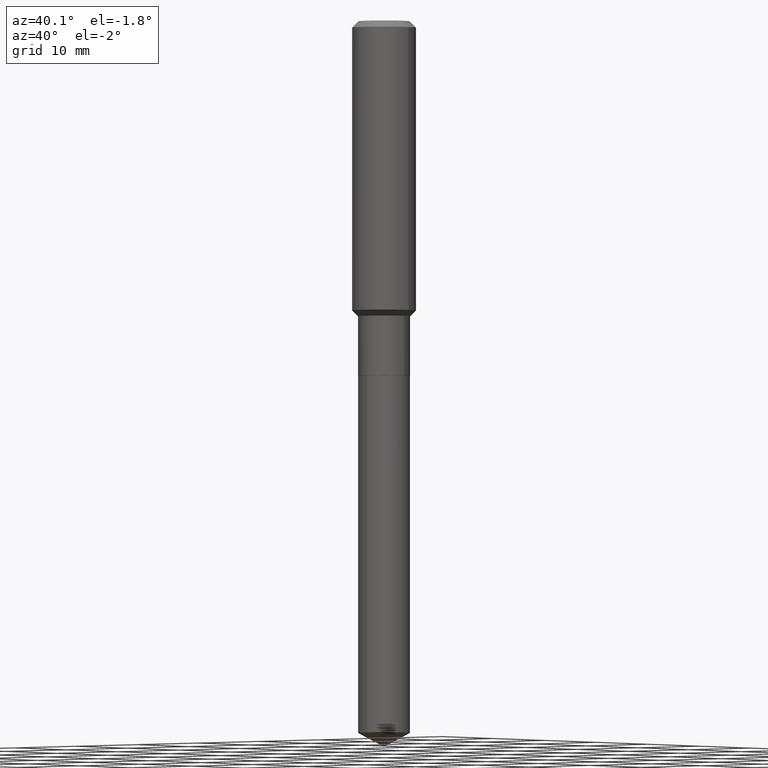
[diagram: clean part render]
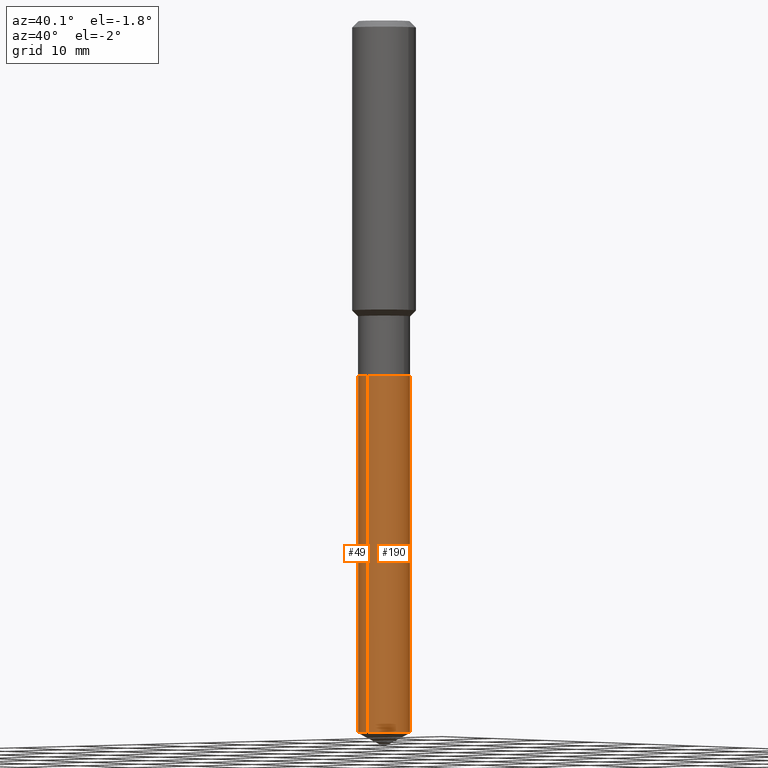
[diagram: same view with one multi-face feature highlighted, each face labeled with its STEP entity id]
A machine part, auxiliary view. The highlighted faces form ONE feature: a constant-radius fillet chain: 2 tangent blend faces with common blend radius 3.2639 mm. The faces share edges in the B-rep.
Their STEP definitions:
[1] entity #49 (Cylinder):
#2 = CARTESIAN_POINT ( 'NONE',  ( 9.130474154518147468E-16, 0.1284999999999877629, -3.514675338031501450 ) ) ;
#28 = CARTESIAN_POINT ( 'NONE',  ( 9.130474154517715566E-16, 0.1284999999999938969, -1.753000000000000336 ) ) ;
#32 = EDGE_CURVE ( 'NONE', #298, #135, #121, .T. ) ;
#41 = AXIS2_PLACEMENT_3D ( 'NONE', #112, #268, #276 ) ;
#49 = ADVANCED_FACE ( 'NONE', ( #96 ), #405, .T. ) ;
#72 = LINE ( 'NONE', #423, #163 ) ;
#76 = AXIS2_PLACEMENT_3D ( 'NONE', #168, #208, #322 ) ;
#91 = EDGE_CURVE ( 'NONE', #407, #135, #72, .T. ) ;
#94 = VERTEX_POINT ( 'NONE', #2 ) ;
#96 = FACE_OUTER_BOUND ( 'NONE', #142, .T. ) ;
#101 = ORIENTED_EDGE ( 'NONE', *, *, #91, .T. ) ;
#112 = CARTESIAN_POINT ( 'NONE',  ( 8.595028662167520806E-29, -1.227142369974973413E-14, -3.514675338031501006 ) ) ;
#121 = CIRCLE ( 'NONE', #76, 0.1285000000000000031 ) ;
#135 = VERTEX_POINT ( 'NONE', #155 ) ;
#142 = EDGE_LOOP ( 'NONE', ( #401, #304, #101, #210 ) ) ;
#155 = CARTESIAN_POINT ( 'NONE',  ( -8.973107040826423819E-16, -0.1285000000000061093, -1.752999999999999226 ) ) ;
#163 = VECTOR ( 'NONE', #185, 39.37007874015748143 ) ;
#168 = CARTESIAN_POINT ( 'NONE',  ( 4.286906817242544172E-29, -6.120566786992033692E-15, -1.752999999999999892 ) ) ;
#185 = DIRECTION ( 'NONE',  ( -2.445468669464873816E-29, 3.491481534634343059E-15, 1.000000000000000000 ) ) ;
#208 = DIRECTION ( 'NONE',  ( -2.445468669464873816E-29, 3.491481534634343453E-15, 1.000000000000000000 ) ) ;
#210 = ORIENTED_EDGE ( 'NONE', *, *, #32, .F. ) ;
#245 = DIRECTION ( 'NONE',  ( -2.445468669464873816E-29, 3.491481534634343059E-15, 1.000000000000000000 ) ) ;
#246 = DIRECTION ( 'NONE',  ( -2.445468669464873816E-29, 3.491481534634343453E-15, 1.000000000000000000 ) ) ;
#255 = EDGE_CURVE ( 'NONE', #94, #407, #278, .T. ) ;
#268 = DIRECTION ( 'NONE',  ( -2.445468669464873816E-29, 3.491481534634343453E-15, 1.000000000000000000 ) ) ;
#272 = AXIS2_PLACEMENT_3D ( 'NONE', #438, #246, #396 ) ;
#276 = DIRECTION ( 'NONE',  ( -6.982962677686265922E-15, -1.000000000000000000, 4.251903492084456561E-15 ) ) ;
#278 = CIRCLE ( 'NONE', #41, 0.1285000000000000031 ) ;
#285 = CARTESIAN_POINT ( 'NONE',  ( 9.130474154518149440E-16, 0.1284999999999938969, -1.753000000000000336 ) ) ;
#298 = VERTEX_POINT ( 'NONE', #285 ) ;
#304 = ORIENTED_EDGE ( 'NONE', *, *, #255, .T. ) ;
#312 = EDGE_CURVE ( 'NONE', #94, #298, #412, .T. ) ;
#322 = DIRECTION ( 'NONE',  ( -6.982962677686265922E-15, -1.000000000000000000, 4.251903492084456561E-15 ) ) ;
#396 = DIRECTION ( 'NONE',  ( -6.982962677686265922E-15, -1.000000000000000000, 4.251903492084456561E-15 ) ) ;
#401 = ORIENTED_EDGE ( 'NONE', *, *, #312, .F. ) ;
#405 = CYLINDRICAL_SURFACE ( 'NONE', #272, 0.1285000000000000031 ) ;
#407 = VERTEX_POINT ( 'NONE', #473 ) ;
#412 = LINE ( 'NONE', #28, #447 ) ;
#423 = CARTESIAN_POINT ( 'NONE',  ( -8.973107040826423819E-16, -0.1285000000000061093, -1.752999999999999226 ) ) ;
#438 = CARTESIAN_POINT ( 'NONE',  ( 4.286906817242544172E-29, -6.120566786992033692E-15, -1.752999999999999892 ) ) ;
#447 = VECTOR ( 'NONE', #245, 39.37007874015748143 ) ;
#473 = CARTESIAN_POINT ( 'NONE',  ( -8.973107040825995862E-16, -0.1285000000000122988, -3.514675338031500118 ) ) ;
[2] entity #190 (Cylinder):
#2 = CARTESIAN_POINT ( 'NONE',  ( 9.130474154518147468E-16, 0.1284999999999877629, -3.514675338031501450 ) ) ;
#7 = EDGE_CURVE ( 'NONE', #407, #94, #390, .T. ) ;
#14 = CARTESIAN_POINT ( 'NONE',  ( 8.595028662167520806E-29, -1.227142369974973413E-14, -3.514675338031501006 ) ) ;
#28 = CARTESIAN_POINT ( 'NONE',  ( 9.130474154517715566E-16, 0.1284999999999938969, -1.753000000000000336 ) ) ;
#33 = AXIS2_PLACEMENT_3D ( 'NONE', #14, #443, #249 ) ;
#34 = AXIS2_PLACEMENT_3D ( 'NONE', #302, #449, #73 ) ;
#36 = DIRECTION ( 'NONE',  ( -6.982962677686265922E-15, -1.000000000000000000, 4.251903492084456561E-15 ) ) ;
#52 = ORIENTED_EDGE ( 'NONE', *, *, #91, .F. ) ;
#72 = LINE ( 'NONE', #423, #163 ) ;
#73 = DIRECTION ( 'NONE',  ( -6.982962677686265922E-15, -1.000000000000000000, 4.251903492084456561E-15 ) ) ;
#91 = EDGE_CURVE ( 'NONE', #407, #135, #72, .T. ) ;
#94 = VERTEX_POINT ( 'NONE', #2 ) ;
#97 = ORIENTED_EDGE ( 'NONE', *, *, #431, .F. ) ;
#111 = CARTESIAN_POINT ( 'NONE',  ( 4.286906817242544172E-29, -6.120566786992033692E-15, -1.752999999999999892 ) ) ;
#117 = CIRCLE ( 'NONE', #34, 0.1285000000000000031 ) ;
#135 = VERTEX_POINT ( 'NONE', #155 ) ;
#148 = FACE_OUTER_BOUND ( 'NONE', #207, .T. ) ;
#149 = AXIS2_PLACEMENT_3D ( 'NONE', #111, #299, #36 ) ;
#155 = CARTESIAN_POINT ( 'NONE',  ( -8.973107040826423819E-16, -0.1285000000000061093, -1.752999999999999226 ) ) ;
#163 = VECTOR ( 'NONE', #185, 39.37007874015748143 ) ;
#185 = DIRECTION ( 'NONE',  ( -2.445468669464873816E-29, 3.491481534634343059E-15, 1.000000000000000000 ) ) ;
#190 = ADVANCED_FACE ( 'NONE', ( #148 ), #455, .T. ) ;
#207 = EDGE_LOOP ( 'NONE', ( #250, #331, #97, #52 ) ) ;
#245 = DIRECTION ( 'NONE',  ( -2.445468669464873816E-29, 3.491481534634343059E-15, 1.000000000000000000 ) ) ;
#249 = DIRECTION ( 'NONE',  ( -6.982962677686265922E-15, -1.000000000000000000, 4.251903492084456561E-15 ) ) ;
#250 = ORIENTED_EDGE ( 'NONE', *, *, #7, .T. ) ;
#285 = CARTESIAN_POINT ( 'NONE',  ( 9.130474154518149440E-16, 0.1284999999999938969, -1.753000000000000336 ) ) ;
#298 = VERTEX_POINT ( 'NONE', #285 ) ;
#299 = DIRECTION ( 'NONE',  ( -2.445468669464873816E-29, 3.491481534634343453E-15, 1.000000000000000000 ) ) ;
#302 = CARTESIAN_POINT ( 'NONE',  ( 4.286906817242544172E-29, -6.120566786992033692E-15, -1.752999999999999892 ) ) ;
#312 = EDGE_CURVE ( 'NONE', #94, #298, #412, .T. ) ;
#331 = ORIENTED_EDGE ( 'NONE', *, *, #312, .T. ) ;
#390 = CIRCLE ( 'NONE', #33, 0.1285000000000000031 ) ;
#407 = VERTEX_POINT ( 'NONE', #473 ) ;
#412 = LINE ( 'NONE', #28, #447 ) ;
#423 = CARTESIAN_POINT ( 'NONE',  ( -8.973107040826423819E-16, -0.1285000000000061093, -1.752999999999999226 ) ) ;
#431 = EDGE_CURVE ( 'NONE', #135, #298, #117, .T. ) ;
#443 = DIRECTION ( 'NONE',  ( -2.445468669464873816E-29, 3.491481534634343453E-15, 1.000000000000000000 ) ) ;
#447 = VECTOR ( 'NONE', #245, 39.37007874015748143 ) ;
#449 = DIRECTION ( 'NONE',  ( -2.445468669464873816E-29, 3.491481534634343453E-15, 1.000000000000000000 ) ) ;
#455 = CYLINDRICAL_SURFACE ( 'NONE', #149, 0.1285000000000000031 ) ;
#473 = CARTESIAN_POINT ( 'NONE',  ( -8.973107040825995862E-16, -0.1285000000000122988, -3.514675338031500118 ) ) ;